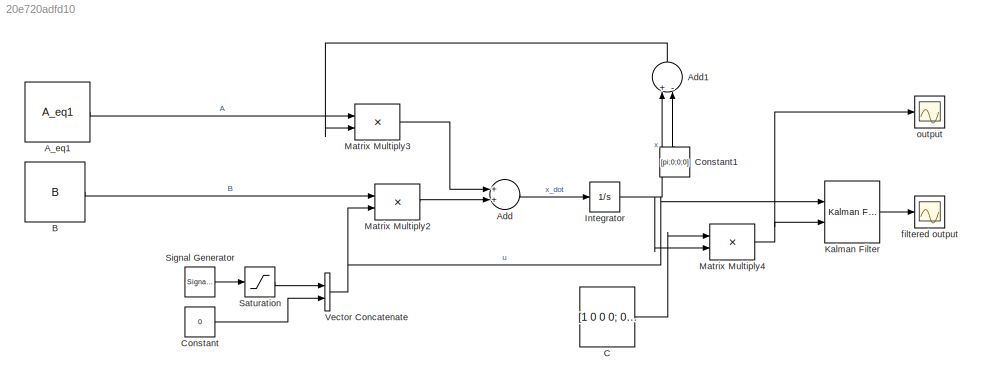
MODEL slx_20e720adfd10
KIND model
CONFIG AbsTol = auto
CONFIG EnableMultiTasking = off
CONFIG FixedStep = auto
CONFIG InitFcn = lin_discr_model
CONFIG MaxStep = auto
CONFIG MinStep = auto
CONFIG RelTol = 1e-3
CONFIG SampleTimeConstraint = Unconstrained
CONFIG Solver = VariableStepAuto
CONFIG SolverName = VariableStepAuto
CONFIG StartTime = 0.0
CONFIG StopTime = 30
BLOCK [Constant] A_eq1
  Value = A_eq1
BLOCK [Sum] Add
  InputSameDT = off
  OutDataTypeStr = Inherit: Inherit via internal rule
  Ports = [2, 1]
  SaturateOnIntegerOverflow = off
BLOCK [Sum] Add1
  InputSameDT = off
  Inputs = +-
  OutDataTypeStr = Inherit: Inherit via internal rule
  Ports = [2, 1]
  SaturateOnIntegerOverflow = off
BLOCK [Constant] B
  Value = B
BLOCK [Constant] C
  Value = [1 0 0 0;\n0 1 0 0]
BLOCK [Constant] Constant
  Value = 0
BLOCK [Constant] Constant1
  SampleTime = -1
  Value = [pi;0;0;0]
BLOCK [Integrator] Integrator
  InitialCondition = [pi;0;0;0]
  Ports = [1, 1]
BLOCK [Reference] Kalman Filter  REF=ctrlSharedLib/Kalman Filter
  Ports = [2, 1]
  SourceBlock = ctrlSharedLib/Kalman Filter
  SourceProductBaseCode = CT
  SourceProductName = Control System Toolbox
  SourceType = ctrlKalmanFilter
BLOCK [Product] Matrix Multiply2
  InputSameDT = off
  Multiplication = Matrix(*)
  OutDataTypeStr = Inherit: Inherit via internal rule
  Ports = [2, 1]
  RndMeth = Floor
  SaturateOnIntegerOverflow = off
BLOCK [Product] Matrix Multiply3
  InputSameDT = off
  Multiplication = Matrix(*)
  OutDataTypeStr = Inherit: Inherit via internal rule
  Ports = [2, 1]
  RndMeth = Floor
  SaturateOnIntegerOverflow = off
BLOCK [Product] Matrix Multiply4
  InputSameDT = off
  Multiplication = Matrix(*)
  OutDataTypeStr = Inherit: Inherit via internal rule
  Ports = [2, 1]
  RndMeth = Floor
  SaturateOnIntegerOverflow = off
BLOCK [Saturate] Saturation
  InputPortMap = u0
  LowerLimit = -1
  Ports = [1, 1]
  UpperLimit = 1
BLOCK [SignalGenerator] Signal Generator
  Amplitude = 0.3
  Ports = [0, 1]
  WaveForm = square
BLOCK [Concatenate] Vector Concatenate
  Ports = [2, 1]
BLOCK [Scope] filtered output
  Floating = off
  NumInputPorts = 1
  Ports = [1]
  ScopeSpecificationString = Simulink.scopes.TimeScopeBlockCfg('CurrentConfiguration', extmgr.ConfigurationSet(extmgr.Configuration('Core','General UI',true),extmgr.Configuration('Core','Source UI',true),extmgr.Configuration('Sources','WiredSimulink',true,'DataLoggingVariableName','ScopeData1'),extmgr.Configuration('Visuals','Time Domain',true,'SerializedDisplays',{struct('MinYLimReal','-35.06335','MaxYLimReal','36.98552','YL...<+1606ch>
BLOCK [Scope] output
  Floating = off
  NumInputPorts = 1
  Ports = [1]
  ScopeSpecificationString = Simulink.scopes.TimeScopeBlockCfg('CurrentConfiguration', extmgr.ConfigurationSet(extmgr.Configuration('Core','General UI',true),extmgr.Configuration('Core','Source UI',true),extmgr.Configuration('Sources','WiredSimulink',true),extmgr.Configuration('Visuals','Time Domain',true,'SerializedDisplays',{struct('MinYLimReal','-1.26802','MaxYLimReal','4.56763','YLabelReal','','MinYLimMag','0.00000','MaxY...<+1394ch>
LINE A_eq1:1 -> Matrix Multiply3:1
LINE Add1:1 -> Matrix Multiply3:2
LINE Add:1 -> Integrator:1
LINE B:1 -> Matrix Multiply2:1
LINE C:1 -> Matrix Multiply4:1
LINE Constant1:1 -> Add1:2
LINE Constant:1 -> Vector Concatenate:2
NET Integrator:1 -> Add1:1, Matrix Multiply4:2
LINE Kalman Filter:1 -> filtered output:1
LINE Matrix Multiply2:1 -> Add:2
LINE Matrix Multiply3:1 -> Add:1
NET Matrix Multiply4:1 -> Kalman Filter:2, output:1
LINE Saturation:1 -> Vector Concatenate:1
LINE Signal Generator:1 -> Saturation:1
NET Vector Concatenate:1 -> Kalman Filter:1, Matrix Multiply2:2
note: NET lines group one-source signal fan-out (src -> all destinations, sorted); 1:1 wires keep LINE
